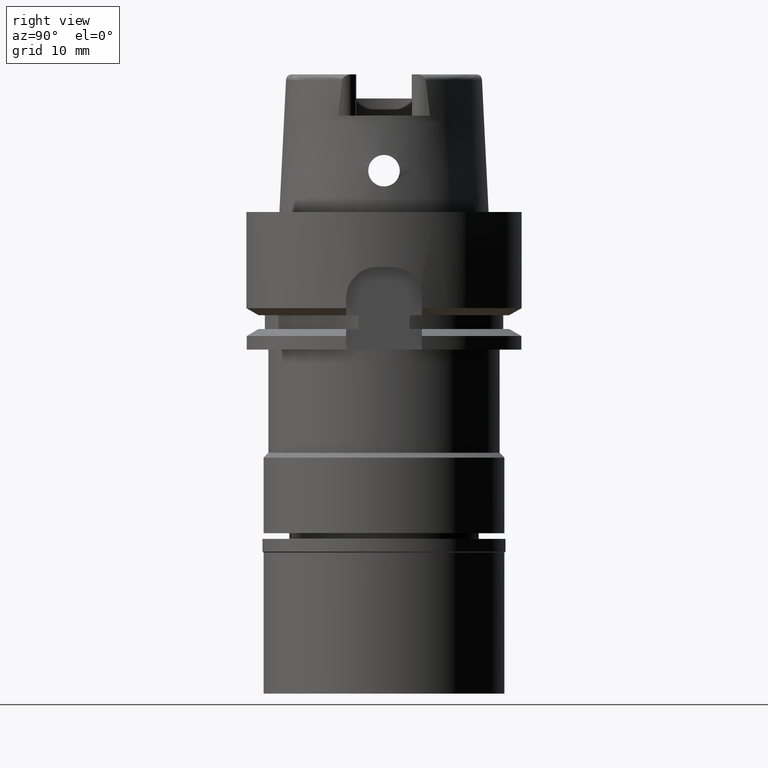
[diagram: clean part render]
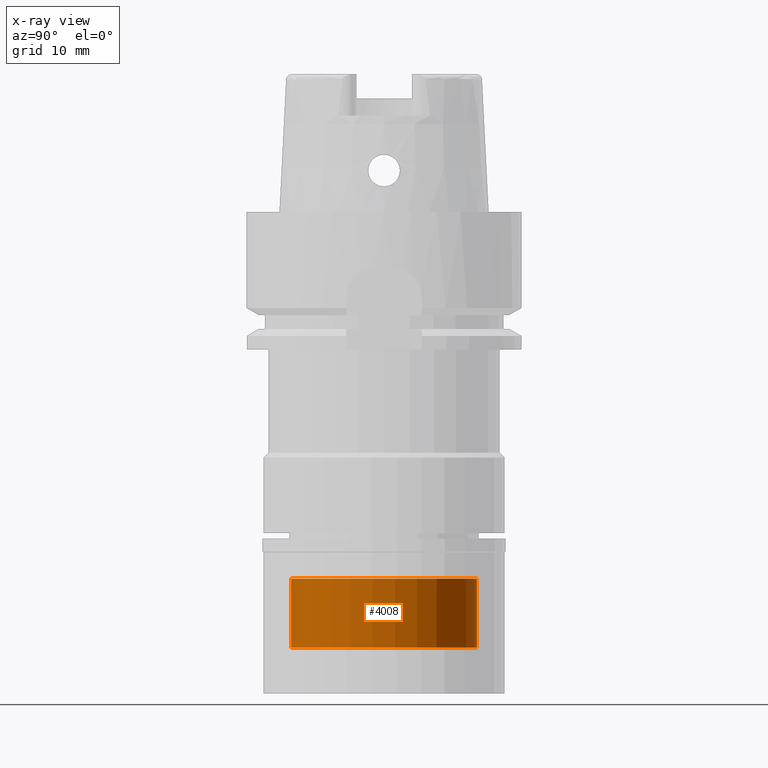
[diagram: x-ray — body ghosted, one internal face saturated and labeled with its STEP entity id]
A machine part, right view, then the same camera in x-ray: the body is ghosted and one INTERNAL B-rep face — a face not visible from any outside direction — is saturated and labeled: STEP entity #4008.
In plain terms, the highlighted cylindrical surface (partial cylindrical patch) has radius 13.5 mm, axis along (0, 0, -1).
Its self-contained STEP definition (entity closure, byte-faithful):
#392 = CIRCLE ( 'NONE', #2865, 13.50000000000000000 ) ;
#466 = ORIENTED_EDGE ( 'NONE', *, *, #2534, .T. ) ;
#473 = EDGE_CURVE ( 'NONE', #3329, #4014, #5082, .T. ) ;
#519 = ORIENTED_EDGE ( 'NONE', *, *, #4316, .T. ) ;
#562 = DIRECTION ( 'NONE',  ( 0.0000000000000000000, -1.000000000000000000, 0.0000000000000000000 ) ) ;
#575 = CARTESIAN_POINT ( 'NONE',  ( 0.0000000000000000000, 1.520582698161000137E-14, 24.16499999999999915 ) ) ;
#1039 = ORIENTED_EDGE ( 'NONE', *, *, #5430, .T. ) ;
#1063 = CARTESIAN_POINT ( 'NONE',  ( 0.0000000000000000000, 1.520582698161000137E-14, -53.29999999999999716 ) ) ;
#1237 = ORIENTED_EDGE ( 'NONE', *, *, #473, .F. ) ;
#1338 = CARTESIAN_POINT ( 'NONE',  ( 0.0000000000000000000, -13.50000000000000000, -53.29999999999999716 ) ) ;
#1933 = CARTESIAN_POINT ( 'NONE',  ( 0.0000000000000000000, -13.50000000000000000, -63.29999999999999716 ) ) ;
#1962 = DIRECTION ( 'NONE',  ( 0.0000000000000000000, 0.0000000000000000000, -1.000000000000000000 ) ) ;
#2534 = EDGE_CURVE ( 'NONE', #5440, #4014, #5029, .T. ) ;
#2586 = VERTEX_POINT ( 'NONE', #4088 ) ;
#2678 = CYLINDRICAL_SURFACE ( 'NONE', #3322, 13.50000000000000000 ) ;
#2773 = DIRECTION ( 'NONE',  ( 0.0000000000000000000, 0.0000000000000000000, 1.000000000000000000 ) ) ;
#2865 = AXIS2_PLACEMENT_3D ( 'NONE', #1063, #1962, #3210 ) ;
#3018 = DIRECTION ( 'NONE',  ( 0.0000000000000000000, 0.0000000000000000000, -1.000000000000000000 ) ) ;
#3210 = DIRECTION ( 'NONE',  ( 0.0000000000000000000, 1.000000000000000000, 0.0000000000000000000 ) ) ;
#3255 = CARTESIAN_POINT ( 'NONE',  ( 0.0000000000000000000, 13.50000000000000000, -53.29999999999999716 ) ) ;
#3322 = AXIS2_PLACEMENT_3D ( 'NONE', #575, #5208, #3436 ) ;
#3329 = VERTEX_POINT ( 'NONE', #3255 ) ;
#3391 = CARTESIAN_POINT ( 'NONE',  ( 0.0000000000000000000, 13.50000000000000000, -53.29999999999999716 ) ) ;
#3436 = DIRECTION ( 'NONE',  ( 0.0000000000000000000, -1.000000000000000000, 0.0000000000000000000 ) ) ;
#4003 = CARTESIAN_POINT ( 'NONE',  ( 0.0000000000000000000, 1.520582698161000137E-14, -63.29999999999999716 ) ) ;
#4008 = ADVANCED_FACE ( 'NONE', ( #4765 ), #2678, .T. ) ;
#4014 = VERTEX_POINT ( 'NONE', #4791 ) ;
#4088 = CARTESIAN_POINT ( 'NONE',  ( 0.0000000000000000000, -13.50000000000000000, -53.29999999999999716 ) ) ;
#4192 = EDGE_LOOP ( 'NONE', ( #1039, #519, #466, #1237 ) ) ;
#4316 = EDGE_CURVE ( 'NONE', #2586, #5440, #4663, .T. ) ;
#4399 = AXIS2_PLACEMENT_3D ( 'NONE', #4003, #2773, #562 ) ;
#4659 = DIRECTION ( 'NONE',  ( 0.0000000000000000000, 0.0000000000000000000, -1.000000000000000000 ) ) ;
#4663 = LINE ( 'NONE', #1338, #5438 ) ;
#4765 = FACE_OUTER_BOUND ( 'NONE', #4192, .T. ) ;
#4791 = CARTESIAN_POINT ( 'NONE',  ( 0.0000000000000000000, 13.50000000000000000, -63.29999999999999716 ) ) ;
#5007 = VECTOR ( 'NONE', #4659, 1000.000000000000000 ) ;
#5029 = CIRCLE ( 'NONE', #4399, 13.50000000000000000 ) ;
#5082 = LINE ( 'NONE', #3391, #5007 ) ;
#5208 = DIRECTION ( 'NONE',  ( 0.0000000000000000000, 0.0000000000000000000, -1.000000000000000000 ) ) ;
#5430 = EDGE_CURVE ( 'NONE', #3329, #2586, #392, .T. ) ;
#5438 = VECTOR ( 'NONE', #3018, 1000.000000000000000 ) ;
#5440 = VERTEX_POINT ( 'NONE', #1933 ) ;